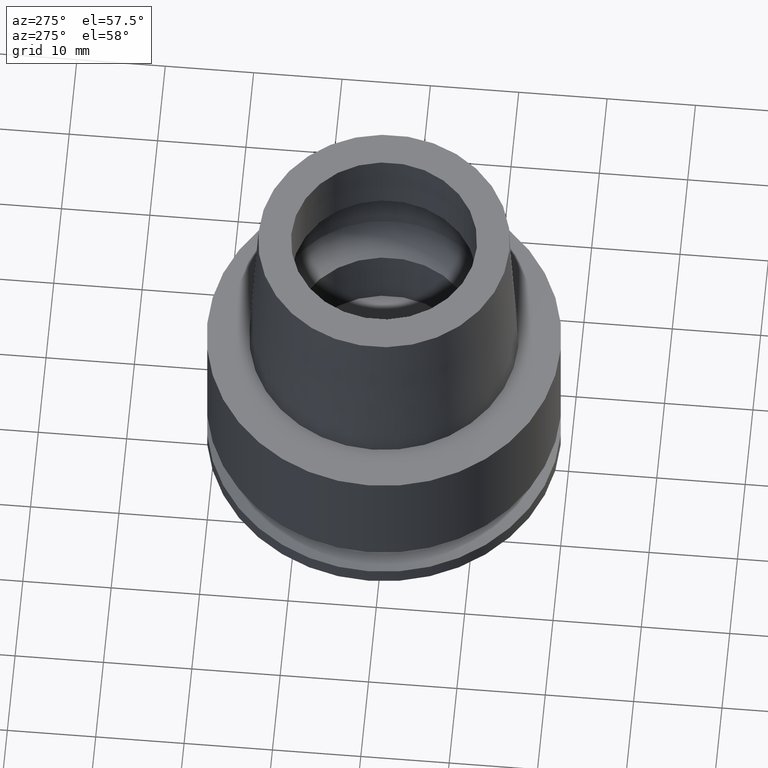
[diagram: clean part render]
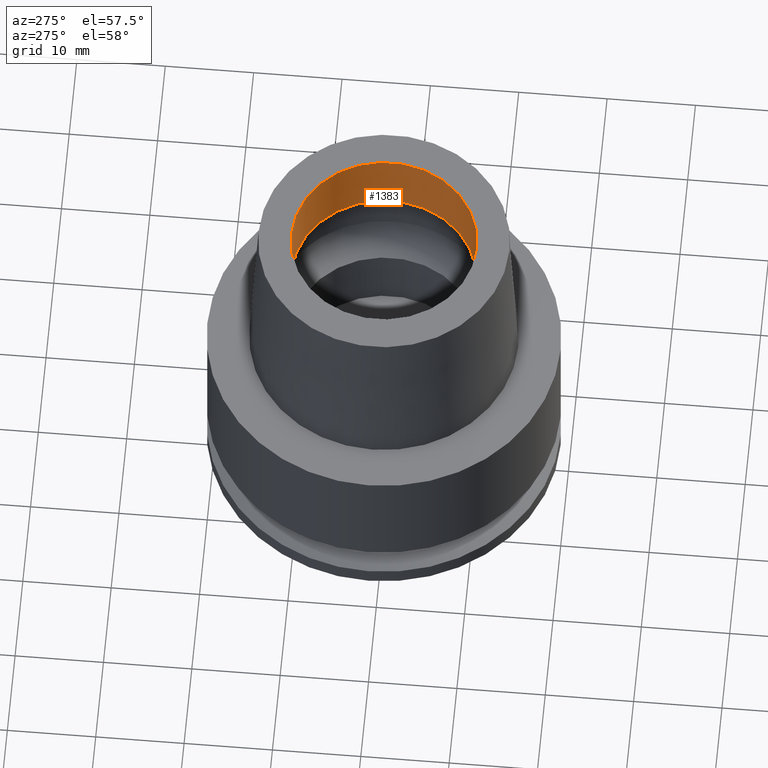
[diagram: same view with one face highlighted and labeled with its STEP entity id]
A machine part, auxiliary view. The second image highlights one B-rep face of the part: STEP entity #1383.
In plain terms, the highlighted cylindrical surface (partial cylindrical patch) has radius 10.5 mm, axis along (0, 0, 1).
Its self-contained STEP definition (entity closure, byte-faithful):
#122 = CARTESIAN_POINT ( 'NONE',  ( 0.0000000000000000000, 0.0000000000000000000, -39.11499999999999488 ) ) ;
#148 = DIRECTION ( 'NONE',  ( 0.0000000000000000000, 0.0000000000000000000, 1.000000000000000000 ) ) ;
#232 = CARTESIAN_POINT ( 'NONE',  ( 0.0000000000000000000, 10.50000000000000000, 11.99735026918999914 ) ) ;
#317 = AXIS2_PLACEMENT_3D ( 'NONE', #122, #1203, #2203 ) ;
#343 = VERTEX_POINT ( 'NONE', #1838 ) ;
#484 = CARTESIAN_POINT ( 'NONE',  ( 0.0000000000000000000, 10.50000000000000000, 11.99735026918999914 ) ) ;
#500 = AXIS2_PLACEMENT_3D ( 'NONE', #1876, #148, #2237 ) ;
#560 = ORIENTED_EDGE ( 'NONE', *, *, #1590, .T. ) ;
#584 = VERTEX_POINT ( 'NONE', #1884 ) ;
#693 = VERTEX_POINT ( 'NONE', #2012 ) ;
#791 = ORIENTED_EDGE ( 'NONE', *, *, #936, .F. ) ;
#823 = LINE ( 'NONE', #232, #1057 ) ;
#936 = EDGE_CURVE ( 'NONE', #1146, #693, #823, .T. ) ;
#971 = CIRCLE ( 'NONE', #1241, 10.50000000000000000 ) ;
#1057 = VECTOR ( 'NONE', #2521, 1000.000000000000000 ) ;
#1112 = CIRCLE ( 'NONE', #500, 10.50000000000000000 ) ;
#1131 = DIRECTION ( 'NONE',  ( 0.0000000000000000000, 1.000000000000000000, 0.0000000000000000000 ) ) ;
#1138 = EDGE_CURVE ( 'NONE', #1146, #343, #971, .T. ) ;
#1146 = VERTEX_POINT ( 'NONE', #484 ) ;
#1203 = DIRECTION ( 'NONE',  ( 0.0000000000000000000, 0.0000000000000000000, 1.000000000000000000 ) ) ;
#1241 = AXIS2_PLACEMENT_3D ( 'NONE', #2140, #2585, #1131 ) ;
#1275 = ORIENTED_EDGE ( 'NONE', *, *, #1138, .T. ) ;
#1293 = LINE ( 'NONE', #1462, #2537 ) ;
#1383 = ADVANCED_FACE ( 'NONE', ( #2015 ), #2684, .F. ) ;
#1441 = ORIENTED_EDGE ( 'NONE', *, *, #2472, .T. ) ;
#1462 = CARTESIAN_POINT ( 'NONE',  ( 0.0000000000000000000, -10.50000000000000000, 11.99735026918999914 ) ) ;
#1590 = EDGE_CURVE ( 'NONE', #343, #584, #1293, .T. ) ;
#1838 = CARTESIAN_POINT ( 'NONE',  ( 0.0000000000000000000, -10.50000000000000000, 11.99735026918999914 ) ) ;
#1876 = CARTESIAN_POINT ( 'NONE',  ( 0.0000000000000000000, 0.0000000000000000000, 20.00000000000000000 ) ) ;
#1884 = CARTESIAN_POINT ( 'NONE',  ( 0.0000000000000000000, -10.50000000000000000, 20.00000000000000000 ) ) ;
#2012 = CARTESIAN_POINT ( 'NONE',  ( 0.0000000000000000000, 10.50000000000000000, 20.00000000000000000 ) ) ;
#2015 = FACE_OUTER_BOUND ( 'NONE', #2482, .T. ) ;
#2140 = CARTESIAN_POINT ( 'NONE',  ( 0.0000000000000000000, 0.0000000000000000000, 11.99735026918999914 ) ) ;
#2203 = DIRECTION ( 'NONE',  ( 0.0000000000000000000, 1.000000000000000000, 0.0000000000000000000 ) ) ;
#2237 = DIRECTION ( 'NONE',  ( 0.0000000000000000000, -1.000000000000000000, 0.0000000000000000000 ) ) ;
#2298 = DIRECTION ( 'NONE',  ( 0.0000000000000000000, -4.528210123235999978E-14, 1.000000000000000000 ) ) ;
#2472 = EDGE_CURVE ( 'NONE', #584, #693, #1112, .T. ) ;
#2482 = EDGE_LOOP ( 'NONE', ( #1275, #560, #1441, #791 ) ) ;
#2521 = DIRECTION ( 'NONE',  ( 0.0000000000000000000, 4.528210123235999978E-14, 1.000000000000000000 ) ) ;
#2537 = VECTOR ( 'NONE', #2298, 1000.000000000000000 ) ;
#2585 = DIRECTION ( 'NONE',  ( 0.0000000000000000000, 0.0000000000000000000, -1.000000000000000000 ) ) ;
#2684 = CYLINDRICAL_SURFACE ( 'NONE', #317, 10.50000000000000000 ) ;